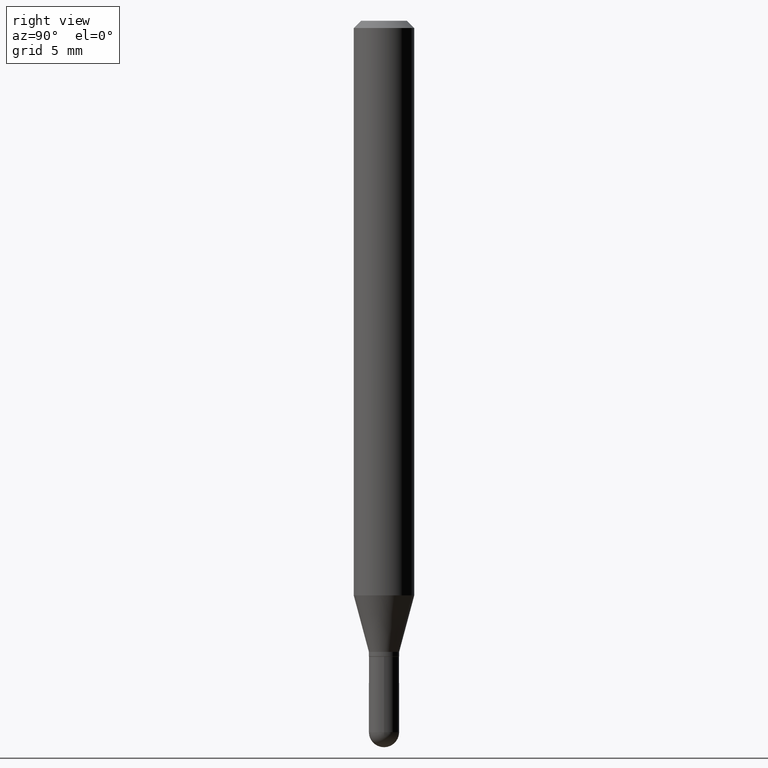
[diagram: clean part render]
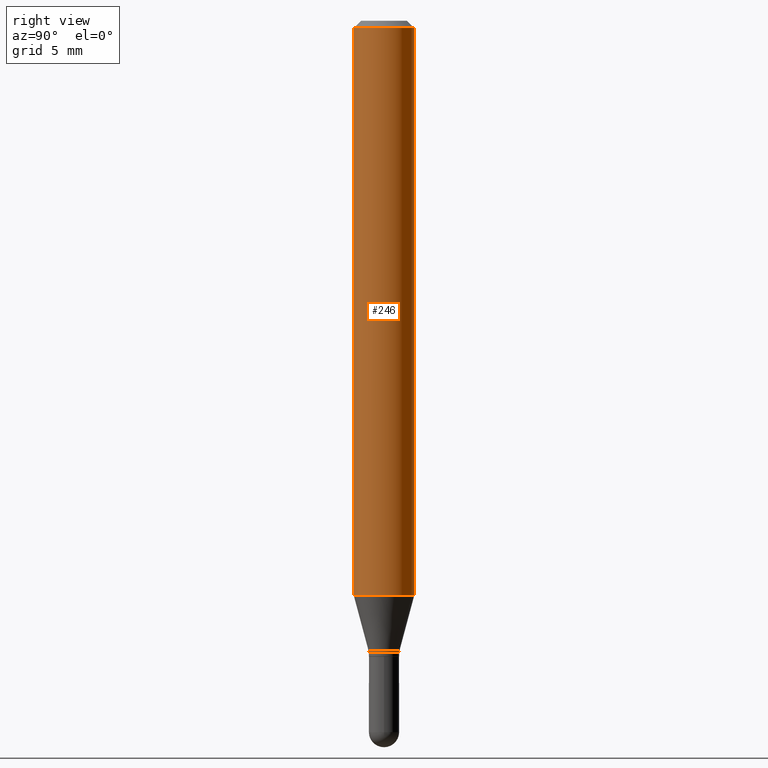
[diagram: same view with one face highlighted and labeled with its STEP entity id]
A machine part, right view. The second image highlights one B-rep face of the part: STEP entity #246.
In plain terms, the highlighted cylindrical surface (edge-blend (fillet) strip) has radius 1.5875 mm, axis along (-0, 0, 1).
Its self-contained STEP definition (entity closure, byte-faithful):
#9 = CIRCLE ( 'NONE', #63, 0.06249999999999999306 ) ;
#17 = CARTESIAN_POINT ( 'NONE',  ( 4.440892098500914096E-16, 0.06249999999999582279, -1.186373412263470595 ) ) ;
#53 = AXIS2_PLACEMENT_3D ( 'NONE', #395, #347, #470 ) ;
#61 = DIRECTION ( 'NONE',  ( -2.448422132368495575E-29, 3.487252007655688059E-15, 1.000000000000000000 ) ) ;
#63 = AXIS2_PLACEMENT_3D ( 'NONE', #358, #188, #416 ) ;
#92 = CARTESIAN_POINT ( 'NONE',  ( -4.364351673553916201E-16, -0.06250000000000000000, 2.179532504784805037E-16 ) ) ;
#134 = EDGE_CURVE ( 'NONE', #474, #392, #280, .T. ) ;
#159 = CARTESIAN_POINT ( 'NONE',  ( -4.364351673553627281E-16, -0.06250000000000416334, -1.186373412263470373 ) ) ;
#183 = CYLINDRICAL_SURFACE ( 'NONE', #53, 0.06250000000000000000 ) ;
#188 = DIRECTION ( 'NONE',  ( -2.448422132368495575E-29, 3.487252007655688059E-15, 1.000000000000000000 ) ) ;
#194 = ORIENTED_EDGE ( 'NONE', *, *, #134, .F. ) ;
#202 = DIRECTION ( 'NONE',  ( -2.448422132368495295E-29, 3.487252007655688059E-15, 1.000000000000000000 ) ) ;
#218 = DIRECTION ( 'NONE',  ( -6.982962677686265922E-15, -1.000000000000000000, 3.483106191921934765E-15 ) ) ;
#230 = ORIENTED_EDGE ( 'NONE', *, *, #231, .T. ) ;
#231 = EDGE_CURVE ( 'NONE', #481, #424, #9, .T. ) ;
#246 = ADVANCED_FACE ( 'NONE', ( #391 ), #183, .T. ) ;
#247 = ORIENTED_EDGE ( 'NONE', *, *, #463, .F. ) ;
#259 = CARTESIAN_POINT ( 'NONE',  ( 3.672633198552774961E-31, -5.230878011483577990E-17, -0.01500000000000012955 ) ) ;
#271 = CARTESIAN_POINT ( 'NONE',  ( 4.440892098500920012E-16, 0.06249999999999996531, -0.01500000000000034812 ) ) ;
#280 = CIRCLE ( 'NONE', #414, 0.06250000000000001388 ) ;
#284 = LINE ( 'NONE', #322, #384 ) ;
#316 = EDGE_LOOP ( 'NONE', ( #230, #387, #194, #247 ) ) ;
#322 = CARTESIAN_POINT ( 'NONE',  ( 4.440892098500625669E-16, 0.06250000000000000000, -2.179532504784805037E-16 ) ) ;
#347 = DIRECTION ( 'NONE',  ( -2.448422132368495575E-29, 3.487252007655688059E-15, 1.000000000000000000 ) ) ;
#350 = EDGE_CURVE ( 'NONE', #424, #392, #284, .T. ) ;
#357 = CARTESIAN_POINT ( 'NONE',  ( -4.364351673553913736E-16, -0.06250000000000006939, -0.01499999999999991271 ) ) ;
#358 = CARTESIAN_POINT ( 'NONE',  ( 2.904742919839414695E-29, -4.137183063745116506E-15, -1.186373412263470595 ) ) ;
#366 = DIRECTION ( 'NONE',  ( -2.448422132368495295E-29, 3.487252007655688059E-15, 1.000000000000000000 ) ) ;
#384 = VECTOR ( 'NONE', #366, 39.37007874015748143 ) ;
#387 = ORIENTED_EDGE ( 'NONE', *, *, #350, .T. ) ;
#391 = FACE_OUTER_BOUND ( 'NONE', #316, .T. ) ;
#392 = VERTEX_POINT ( 'NONE', #271 ) ;
#395 = CARTESIAN_POINT ( 'NONE',  ( 0.000000000000000000, 0.000000000000000000, 0.000000000000000000 ) ) ;
#397 = LINE ( 'NONE', #92, #502 ) ;
#414 = AXIS2_PLACEMENT_3D ( 'NONE', #259, #61, #218 ) ;
#416 = DIRECTION ( 'NONE',  ( -6.982962677686265922E-15, -1.000000000000000000, 4.370956789862821938E-15 ) ) ;
#424 = VERTEX_POINT ( 'NONE', #17 ) ;
#463 = EDGE_CURVE ( 'NONE', #481, #474, #397, .T. ) ;
#470 = DIRECTION ( 'NONE',  ( -6.982962677686265922E-15, -1.000000000000000000, 3.487252007655688059E-15 ) ) ;
#474 = VERTEX_POINT ( 'NONE', #357 ) ;
#481 = VERTEX_POINT ( 'NONE', #159 ) ;
#502 = VECTOR ( 'NONE', #202, 39.37007874015748143 ) ;